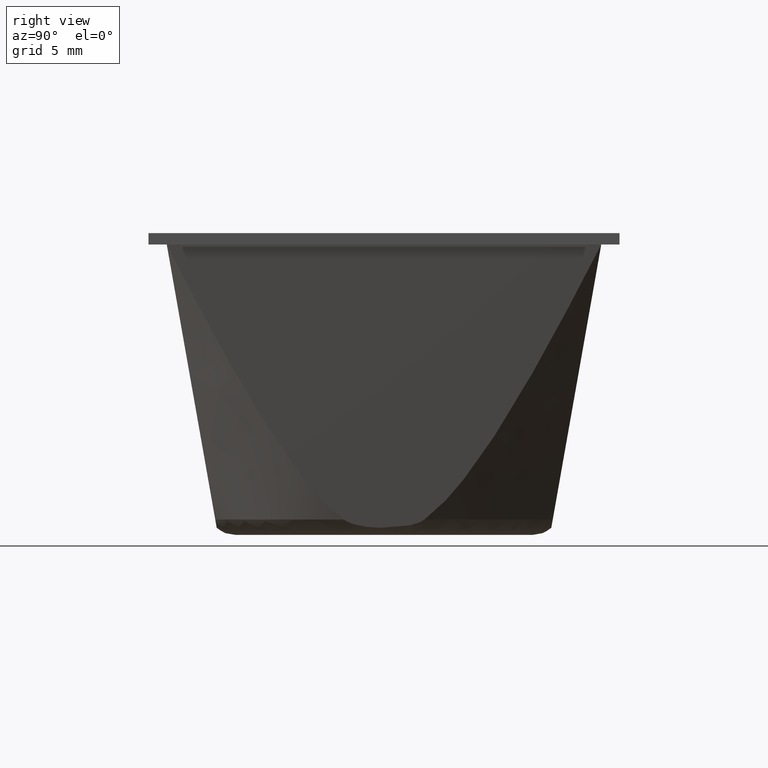
[diagram: clean part render]
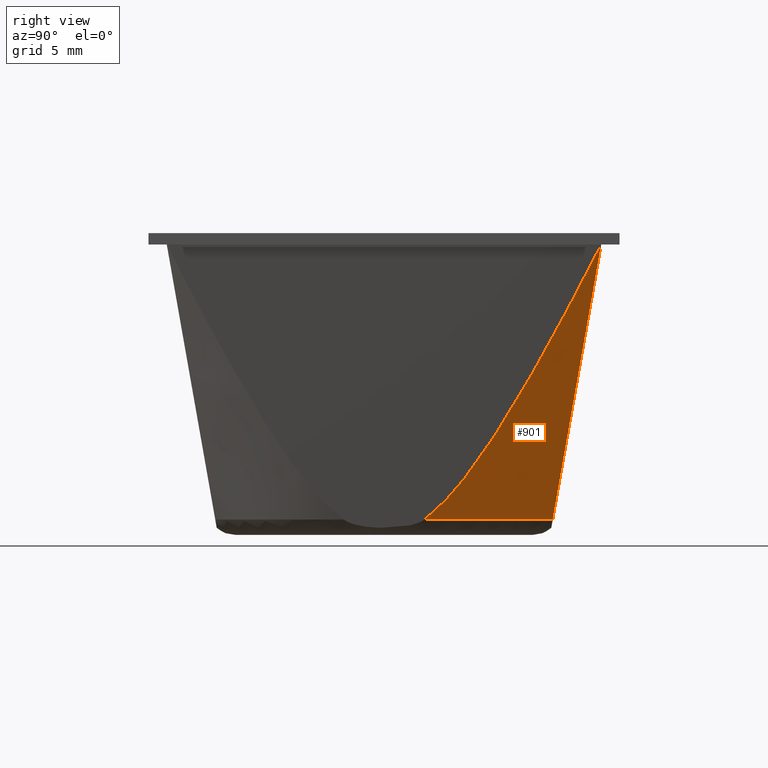
[diagram: same view with one face highlighted and labeled with its STEP entity id]
A machine part, right view. The second image highlights one B-rep face of the part: STEP entity #901.
In plain terms, the highlighted face is a freeform B-spline surface patch.
Its self-contained STEP definition (entity closure, byte-faithful):
#90=CARTESIAN_POINT('',(3.317256907468267,6.825556319390302,0.675315743457834));
#91=VERTEX_POINT('',#90);
#105=CARTESIAN_POINT('',(7.379723671231931,1.769771452936485,0.675315743465285));
#106=VERTEX_POINT('',#105);
#107=CARTESIAN_POINT('',(7.379723671231935,1.769771452936486,0.675315743465285));
#108=CARTESIAN_POINT('',(6.543264853436612,5.257699189284913,0.675315743465285));
#109=CARTESIAN_POINT('',(3.317256907468268,6.825556319390302,0.675315743457834));
#117=(BOUNDED_CURVE()B_SPLINE_CURVE(2,(#107,#108,#109),.UNSPECIFIED.,.F.,.U.)B_SPLINE_CURVE_WITH_KNOTS((3,3),(0.0,0.797806636239092),.UNSPECIFIED.)CURVE()GEOMETRIC_REPRESENTATION_ITEM()RATIONAL_B_SPLINE_CURVE((1.0,0.882331522374842,0.952416429400688))REPRESENTATION_ITEM(''));
#118=EDGE_CURVE('',#106,#91,#117,.T.);
#372=CARTESIAN_POINT('',(1.769771452951430,7.379723671228351,0.675315743465285));
#373=VERTEX_POINT('',#372);
#409=CARTESIAN_POINT('',(3.317256907468268,6.825556319390302,0.675315743457834));
#410=CARTESIAN_POINT('',(2.573698939572392,7.186929471953415,0.675315743465285));
#411=CARTESIAN_POINT('',(1.769771452951429,7.379723671228352,0.675315743465285));
#419=(BOUNDED_CURVE()B_SPLINE_CURVE(2,(#409,#410,#411),.UNSPECIFIED.,.F.,.U.)B_SPLINE_CURVE_WITH_KNOTS((3,3),(0.797806636239092,1.0),.UNSPECIFIED.)CURVE()GEOMETRIC_REPRESENTATION_ITEM()RATIONAL_B_SPLINE_CURVE((0.952416429400688,0.970178506646909,1.0))REPRESENTATION_ITEM(''));
#420=EDGE_CURVE('',#91,#373,#419,.T.);
#477=CARTESIAN_POINT('',(9.500000000000000,9.499999999999730,12.699999999999999));
#478=VERTEX_POINT('',#477);
#690=CARTESIAN_POINT('',(9.500000000000000,9.499999999999730,12.699999999999999));
#691=CARTESIAN_POINT('',(9.312114196700135,8.955264448293349,11.634446689654460));
#692=CARTESIAN_POINT('',(9.124959800327760,8.403006716575206,10.573041394002390));
#693=CARTESIAN_POINT('',(8.846143634738546,7.554920823071292,8.991796387708325));
#694=CARTESIAN_POINT('',(8.753529186975410,7.268890516965281,8.466553768699278));
#695=CARTESIAN_POINT('',(8.569198695100040,6.687590241124990,7.421163630829392));
#696=CARTESIAN_POINT('',(8.477479309869585,6.392354633237326,6.900997163546091));
#697=CARTESIAN_POINT('',(8.295339622910067,5.788522947960456,5.868031697415161));
#698=CARTESIAN_POINT('',(8.204911278115139,5.480009589762156,5.355187084075612));
#699=CARTESIAN_POINT('',(8.070775643783748,5.001741963214096,4.594466121198978));
#700=CARTESIAN_POINT('',(8.026317895449102,4.839705814503723,4.342333708443507));
#701=CARTESIAN_POINT('',(7.938061007482396,4.508860032949758,3.841804038388380));
#702=CARTESIAN_POINT('',(7.894223727528781,4.339915552355201,3.593190476582577));
#703=CARTESIAN_POINT('',(7.807599654647293,3.993659220290334,3.101920960773674));
#704=CARTESIAN_POINT('',(7.764878525820605,3.816643165533002,2.859637406383319));
#705=CARTESIAN_POINT('',(7.681053884499858,3.451967916293576,2.384244255442043));
#706=CARTESIAN_POINT('',(7.639944367412809,3.264348229153791,2.151100605153030));
#707=CARTESIAN_POINT('',(7.560042688044911,2.873861771559894,1.697955676386076));
#708=CARTESIAN_POINT('',(7.521235430436911,2.671094321119305,1.477868788056130));
#709=CARTESIAN_POINT('',(7.465703602393350,2.349316226163073,1.162932150151024));
#710=CARTESIAN_POINT('',(7.447644835165666,2.239083956712322,1.060515794778447));
#711=CARTESIAN_POINT('',(7.412702778694737,2.010885336385289,0.862349550767678));
#712=CARTESIAN_POINT('',(7.395816704390371,1.892937309875616,0.766583867263401));
#713=CARTESIAN_POINT('',(7.379723671231931,1.769771452936485,0.675315743465285));
#714=B_SPLINE_CURVE_WITH_KNOTS('',3,(#690,#691,#692,#693,#694,#695,#696,#697,#698,#699,#700,#701,#702,#703,#704,#705,#706,#707,#708,#709,#710,#711,#712,#713),.UNSPECIFIED.,.F.,.U.,(4,2,2,2,2,2,2,2,2,2,2,4),(0.0,0.250000000000000,0.375000000000000,0.500000000000000,0.625000000000000,0.687500000000000,0.750000000000000,0.812500000000000,0.875000000000000,0.937500000000000,0.968750000000000,1.0),.UNSPECIFIED.);
#715=EDGE_CURVE('',#478,#106,#714,.T.);
#726=CARTESIAN_POINT('',(1.769771452951430,7.379723671228351,0.675315743465285));
#727=CARTESIAN_POINT('',(1.892520996753548,7.395762308301741,0.766275371723623));
#728=CARTESIAN_POINT('',(2.010301331829139,7.412617569365308,0.861866304660473));
#729=CARTESIAN_POINT('',(2.238458143880050,7.447544818038447,1.059948569479223));
#730=CARTESIAN_POINT('',(2.348818752040543,7.465619413478693,1.162454691103393));
#731=CARTESIAN_POINT('',(2.671267312749843,7.521261962972360,1.478019261537805));
#732=CARTESIAN_POINT('',(2.874853907233010,7.560227003233465,1.699000979734518));
#733=CARTESIAN_POINT('',(3.267327211912545,7.640572816093163,2.154664714627904));
#734=CARTESIAN_POINT('',(3.456225876795408,7.681992271785599,2.389566114045236));
#735=CARTESIAN_POINT('',(3.823232583458695,7.766434739366119,2.868463131722352));
#736=CARTESIAN_POINT('',(4.000515711744109,7.809275703912377,3.111426308231271));
#737=CARTESIAN_POINT('',(4.346216706022752,7.895840892961187,3.602361877239860));
#738=CARTESIAN_POINT('',(4.514607610276502,7.939567803704042,3.850349504164871));
#739=CARTESIAN_POINT('',(4.844729035349380,8.027685209614827,4.350088132194428));
#740=CARTESIAN_POINT('',(5.006446521997362,8.072077003397629,4.601846498109671));
#741=CARTESIAN_POINT('',(5.483847694201242,8.206024657674339,5.361501373149822));
#742=CARTESIAN_POINT('',(5.791900583615719,8.296340786330001,5.873709577156833));
#743=CARTESIAN_POINT('',(6.394934679088980,8.478275395911211,6.905511991713390));
#744=CARTESIAN_POINT('',(6.689835077968791,8.569901927782468,7.425151861443654));
#745=CARTESIAN_POINT('',(7.270540781416086,8.754061150005130,8.469570680873284));
#746=CARTESIAN_POINT('',(7.556312372941834,8.846597199239644,8.994368679744829));
#747=CARTESIAN_POINT('',(8.403697234394345,9.125194679728105,10.574373461237760));
#748=CARTESIAN_POINT('',(8.955585718729873,9.312225006589785,11.635075123749299));
#749=CARTESIAN_POINT('',(9.500000000000000,9.499999999999730,12.699999999999999));
#750=B_SPLINE_CURVE_WITH_KNOTS('',3,(#726,#727,#728,#729,#730,#731,#732,#733,#734,#735,#736,#737,#738,#739,#740,#741,#742,#743,#744,#745,#746,#747,#748,#749),.UNSPECIFIED.,.F.,.U.,(4,2,2,2,2,2,2,2,2,2,2,4),(0.0,0.031250000000000,0.062500000000000,0.125000000000000,0.187500000000000,0.250000000000000,0.312500000000000,0.375000000000000,0.500000000000000,0.625000000000000,0.750000000000000,1.0),.UNSPECIFIED.);
#751=EDGE_CURVE('',#373,#478,#750,.T.);
#881=CARTESIAN_POINT('',(1.672463156890490,7.252472749754649,0.374698637044279));
#882=CARTESIAN_POINT('',(3.052626690129211,13.237416796970111,13.008132534073891));
#883=CARTESIAN_POINT('',(6.429260136532059,6.155527201971980,0.374698637044279));
#884=CARTESIAN_POINT('',(11.734866032595431,11.235240998368026,13.008132534073898));
#885=CARTESIAN_POINT('',(7.318334969363332,1.355532099687667,0.374698637044279));
#886=CARTESIAN_POINT('',(13.357630368563777,2.474155230137848,13.008132534073894));
#894=(BOUNDED_SURFACE()B_SPLINE_SURFACE(1,2,((#881,#883,#885),(#882,#884,#886)),.UNSPECIFIED.,.F.,.F.,.U.)B_SPLINE_SURFACE_WITH_KNOTS((2,2),(3,3),(0.0,14.047350592100941),(0.0,16.230402673959318),.UNSPECIFIED.)GEOMETRIC_REPRESENTATION_ITEM()RATIONAL_B_SPLINE_SURFACE(((1.0,0.835143263938706,0.997504153284107),(1.0,0.835143263938706,0.997504153284107)))REPRESENTATION_ITEM('')SURFACE());
#895=ORIENTED_EDGE('',*,*,#751,.T.);
#896=ORIENTED_EDGE('',*,*,#715,.T.);
#897=ORIENTED_EDGE('',*,*,#118,.T.);
#898=ORIENTED_EDGE('',*,*,#420,.T.);
#899=EDGE_LOOP('',(#895,#896,#897,#898));
#900=FACE_OUTER_BOUND('',#899,.T.);
#901=ADVANCED_FACE('',(#900),#894,.T.);